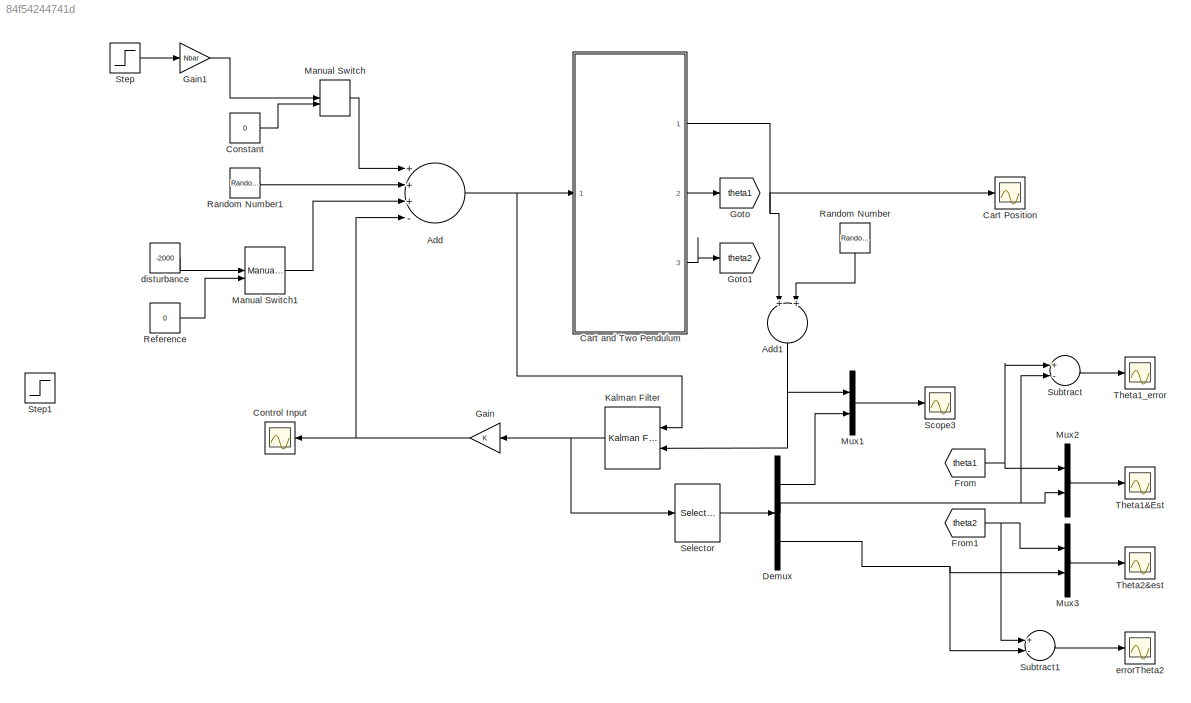
MODEL slx_84f54244741d
KIND model
CONFIG AbsTol = auto
CONFIG FixedStep = auto
CONFIG MaxStep = auto
CONFIG MinStep = auto
CONFIG RelTol = 1e-3
CONFIG SampleTimeConstraint = Unconstrained
CONFIG Solver = VariableStepAuto
CONFIG SolverMode = Auto
CONFIG SolverName = VariableStepAuto
CONFIG StartTime = 0.0
CONFIG StopTime = 50
BLOCK [Sum] Add
  InputSameDT = off
  Inputs = +++-
  OutDataTypeStr = Inherit: Inherit via internal rule
  Ports = [4, 1]
  SaturateOnIntegerOverflow = off
BLOCK [Sum] Add1
  InputSameDT = off
  OutDataTypeStr = Inherit: Inherit via internal rule
  Ports = [2, 1]
  SaturateOnIntegerOverflow = off
BLOCK [Scope] Cart Position
  Ports = [1]
  ScopeSpecificationString = Simulink.scopes.TimeScopeBlockCfg('CurrentConfiguration', extmgr.ConfigurationSet(extmgr.Configuration('Core','General UI',true,'FigureColor',[1 1 1]),extmgr.Configuration('Core','Source UI',true),extmgr.Configuration('Sources','WiredSimulink',true),extmgr.Configuration('Visuals','Time Domain',true,'SerializedDisplays',{struct('MinYLimReal','-2.21929','MaxYLimReal','1.09076','YLabelReal','Cart Pos...<+1548ch>
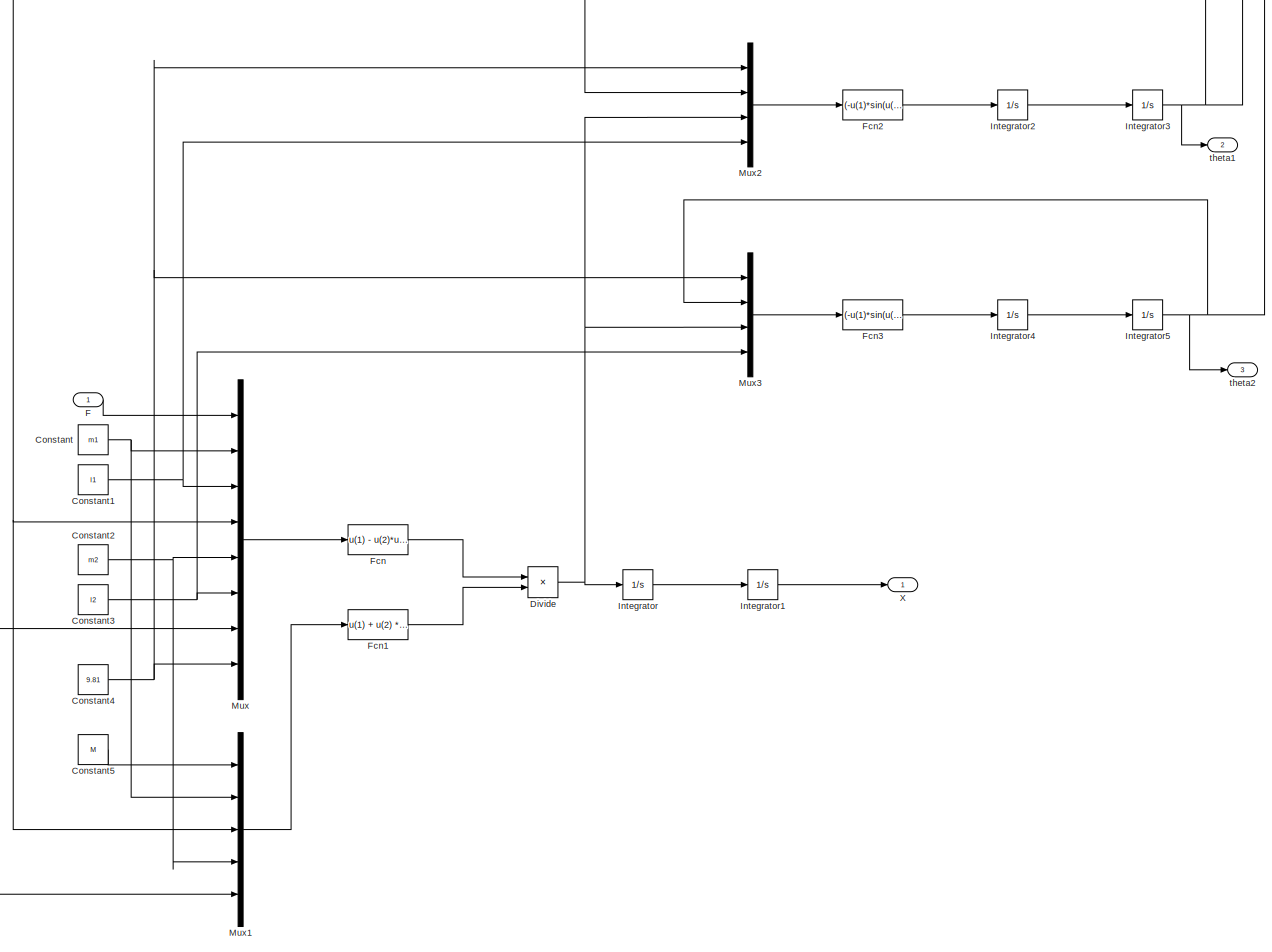
[diagram: Cart and Two Pendulum  - part 1/1, most of the canvas]
BLOCK [SubSystem] Cart and Two Pendulum 
  Ports = [1, 3]
  RequestExecContextInheritance = off
  Variant = off
BLOCK [Constant] Cart and Two Pendulum /Constant
  Value = m1
BLOCK [Constant] Cart and Two Pendulum /Constant1
  Value = l1
BLOCK [Constant] Cart and Two Pendulum /Constant2
  Value = m2
BLOCK [Constant] Cart and Two Pendulum /Constant3
  Value = l2
BLOCK [Constant] Cart and Two Pendulum /Constant4
  Value = 9.81
BLOCK [Constant] Cart and Two Pendulum /Constant5
  Value = M
BLOCK [Product] Cart and Two Pendulum /Divide
  InputSameDT = off
  Inputs = */
  OutDataTypeStr = Inherit: Inherit via internal rule
  Ports = [2, 1]
  RndMeth = Floor
  SaturateOnIntegerOverflow = off
BLOCK [Inport] Cart and Two Pendulum /F
  IconDisplay = Port number
BLOCK [Fcn] Cart and Two Pendulum /Fcn
  Expr = u(1) - u(2)*u(3)*(u(4)^2)*sin(u(4)) - u(5) * u(6) * (u(7)^2)*sin(u(7))-u(2)*u(8)*sin(u(4))*cos(u(4)) - u(5) * u(8) * sin(u(7)) * cos(u(7))
BLOCK [Fcn] Cart and Two Pendulum /Fcn1
  Expr = u(1) + u(2) * (sin(u(3)))^2 + u(4) * (sin(u(5)))^2
BLOCK [Fcn] Cart and Two Pendulum /Fcn2
  Expr = (-u(1)*sin(u(2)) + cos(u(2)) * u(3)) / u(4)
BLOCK [Fcn] Cart and Two Pendulum /Fcn3
  Expr = (-u(1)*sin(u(2)) + cos(u(2)) * u(3)) / u(4)
BLOCK [Integrator] Cart and Two Pendulum /Integrator
  Ports = [1, 1]
BLOCK [Integrator] Cart and Two Pendulum /Integrator1
  InitialCondition = X0(1)
  Ports = [1, 1]
BLOCK [Integrator] Cart and Two Pendulum /Integrator2
  Ports = [1, 1]
BLOCK [Integrator] Cart and Two Pendulum /Integrator3
  InitialCondition = X0(3)
  Ports = [1, 1]
BLOCK [Integrator] Cart and Two Pendulum /Integrator4
  Ports = [1, 1]
BLOCK [Integrator] Cart and Two Pendulum /Integrator5
  InitialCondition = X0(5)
  Ports = [1, 1]
BLOCK [Mux] Cart and Two Pendulum /Mux
  DisplayOption = bar
  Inputs = 8
  Ports = [8, 1]
BLOCK [Mux] Cart and Two Pendulum /Mux1
  DisplayOption = bar
  Inputs = 5
  Ports = [5, 1]
BLOCK [Mux] Cart and Two Pendulum /Mux2
  DisplayOption = bar
  Ports = [4, 1]
BLOCK [Mux] Cart and Two Pendulum /Mux3
  DisplayOption = bar
  Ports = [4, 1]
BLOCK [Outport] Cart and Two Pendulum /X
  IconDisplay = Port number
BLOCK [Outport] Cart and Two Pendulum /theta1
  IconDisplay = Port number
  Port = 2
BLOCK [Outport] Cart and Two Pendulum /theta2
  IconDisplay = Port number
  Port = 3
BLOCK [Constant] Constant
  Value = 0
BLOCK [Scope] Control Input
  Ports = [1]
  ScopeSpecificationString = Simulink.scopes.TimeScopeBlockCfg('CurrentConfiguration', extmgr.ConfigurationSet(extmgr.Configuration('Core','General UI',true),extmgr.Configuration('Core','Source UI',true),extmgr.Configuration('Sources','WiredSimulink',true,'DataLoggingVariableName','ScopeData1'),extmgr.Configuration('Visuals','Time Domain',true,'SerializedDisplays',{struct('MinYLimReal','-27780.46276','MaxYLimReal','83907.0979...<+1393ch>
BLOCK [Demux] Demux
  DisplayOption = bar
  Outputs = 3
  Ports = [1, 3]
BLOCK [From] From
  GotoTag = theta1
BLOCK [From] From1
  GotoTag = theta2
BLOCK [Gain] Gain
  Gain = K
  Multiplication = Matrix(K*u)
  OutDataTypeStr = Inherit: Inherit via internal rule
  ParamDataTypeStr = Inherit: Inherit via internal rule
  SaturateOnIntegerOverflow = off
BLOCK [Gain] Gain1
  Gain = Nbar
  OutDataTypeStr = Inherit: Inherit via internal rule
  ParamDataTypeStr = Inherit: Inherit via internal rule
  SaturateOnIntegerOverflow = off
BLOCK [Goto] Goto
  GotoTag = theta1
BLOCK [Goto] Goto1
  GotoTag = theta2
BLOCK [Reference] Kalman Filter  REF=ctrlSharedLib/Kalman Filter
  Ports = [2, 1]
  SourceBlock = ctrlSharedLib/Kalman Filter
  SourceType = ctrlKalmanFilter
BLOCK [ManualSwitch] Manual Switch
  CurrentSetting = 0
BLOCK [ManualSwitch] Manual Switch1
  CurrentSetting = 0
BLOCK [Mux] Mux1
  DisplayOption = bar
  Inputs = 2
  Ports = [2, 1]
BLOCK [Mux] Mux2
  DisplayOption = bar
  Inputs = 2
  Ports = [2, 1]
BLOCK [Mux] Mux3
  DisplayOption = bar
  Inputs = 2
  Ports = [2, 1]
BLOCK [RandomNumber] Random Number
  SampleTime = 0.1
  Variance = 0.001
BLOCK [RandomNumber] Random Number1
  SampleTime = 0.1
  Variance = 0.2
BLOCK [Constant] Reference
  Value = 0
BLOCK [Scope] Scope3
  Ports = [1]
  ScopeSpecificationString = Simulink.scopes.TimeScopeBlockCfg('CurrentConfiguration', extmgr.ConfigurationSet(extmgr.Configuration('Core','General UI',true),extmgr.Configuration('Core','Source UI',true),extmgr.Configuration('Sources','WiredSimulink',true,'DataLoggingVariableName','ScopeData1'),extmgr.Configuration('Visuals','Time Domain',true,'SerializedDisplays',{struct('MinYLimReal','-4158.89855','MaxYLimReal','2822.64902'...<+1442ch>
BLOCK [Selector] Selector
  IndexOptions = Index vector (dialog)
  Indices = [1 3 5]
  InputPortWidth = 6
  OutputSizes = 1
  Ports = [1, 1]
BLOCK [Step] Step
  After = 10
  SampleTime = 0
BLOCK [Step] Step1
  After = 500
  Commented = on
  SampleTime = 0
BLOCK [Sum] Subtract
  InputSameDT = off
  Inputs = +-
  OutDataTypeStr = Inherit: Inherit via internal rule
  Ports = [2, 1]
  SaturateOnIntegerOverflow = off
BLOCK [Sum] Subtract1
  InputSameDT = off
  Inputs = +-
  OutDataTypeStr = Inherit: Inherit via internal rule
  Ports = [2, 1]
  SaturateOnIntegerOverflow = off
BLOCK [Scope] Theta1&Est
  Ports = [1]
  ScopeSpecificationString = Simulink.scopes.TimeScopeBlockCfg('CurrentConfiguration', extmgr.ConfigurationSet(extmgr.Configuration('Core','General UI',true,'FigureColor',[1 1 1]),extmgr.Configuration('Core','Source UI',true),extmgr.Configuration('Sources','WiredSimulink',true,'DataLoggingVariableName','ScopeData2'),extmgr.Configuration('Visuals','Time Domain',true,'SerializedDisplays',{struct('MinYLimReal','-0.10305','MaxYLi...<+1699ch>
BLOCK [Scope] Theta1_error
  Ports = [1]
  ScopeSpecificationString = Simulink.scopes.TimeScopeBlockCfg('CurrentConfiguration', extmgr.ConfigurationSet(extmgr.Configuration('Core','General UI',true),extmgr.Configuration('Core','Source UI',true),extmgr.Configuration('Sources','WiredSimulink',true,'DataLoggingVariableName','ScopeData4'),extmgr.Configuration('Visuals','Time Domain',true,'SerializedDisplays',{struct('MinYLimReal','-0.00642','MaxYLimReal','0.0065','YLabe...<+1363ch>
BLOCK [Scope] Theta2&est
  Ports = [1]
  ScopeSpecificationString = Simulink.scopes.TimeScopeBlockCfg('CurrentConfiguration', extmgr.ConfigurationSet(extmgr.Configuration('Core','General UI',true,'FigureColor',[1 1 1]),extmgr.Configuration('Core','Source UI',true),extmgr.Configuration('Sources','WiredSimulink',true,'DataLoggingVariableName','ScopeData3'),extmgr.Configuration('Visuals','Time Domain',true,'SerializedDisplays',{struct('MinYLimReal','-0.08285','MaxYLi...<+1674ch>
BLOCK [Constant] disturbance
  Value = -2000
BLOCK [Scope] errorTheta2 
  Ports = [1]
  ScopeSpecificationString = Simulink.scopes.TimeScopeBlockCfg('CurrentConfiguration', extmgr.ConfigurationSet(extmgr.Configuration('Core','General UI',true),extmgr.Configuration('Core','Source UI',true),extmgr.Configuration('Sources','WiredSimulink',true,'DataLoggingVariableName','ScopeData5'),extmgr.Configuration('Visuals','Time Domain',true,'SerializedDisplays',{struct('MinYLimReal','-0.01264','MaxYLimReal','0.01243','YLab...<+1368ch>
NET Add1:1 -> Kalman Filter:2, Mux1:1
NET Add:1 -> Cart and Two Pendulum :1, Kalman Filter:1
NET Cart and Two Pendulum /Constant1:1 -> Cart and Two Pendulum /Mux2:4, Cart and Two Pendulum /Mux:3
NET Cart and Two Pendulum /Constant2:1 -> Cart and Two Pendulum /Mux1:4, Cart and Two Pendulum /Mux:5
NET Cart and Two Pendulum /Constant3:1 -> Cart and Two Pendulum /Mux3:4, Cart and Two Pendulum /Mux:6
NET Cart and Two Pendulum /Constant4:1 -> Cart and Two Pendulum /Mux2:1, Cart and Two Pendulum /Mux3:1, Cart and Two Pendulum /Mux:8
LINE Cart and Two Pendulum /Constant5:1 -> Cart and Two Pendulum /Mux1:1
NET Cart and Two Pendulum /Constant:1 -> Cart and Two Pendulum /Mux1:2, Cart and Two Pendulum /Mux:2
NET Cart and Two Pendulum /Divide:1 -> Cart and Two Pendulum /Integrator:1, Cart and Two Pendulum /Mux2:3, Cart and Two Pendulum /Mux3:3
LINE Cart and Two Pendulum /F:1 -> Cart and Two Pendulum /Mux:1
LINE Cart and Two Pendulum /Fcn1:1 -> Cart and Two Pendulum /Divide:2
LINE Cart and Two Pendulum /Fcn2:1 -> Cart and Two Pendulum /Integrator2:1
LINE Cart and Two Pendulum /Fcn3:1 -> Cart and Two Pendulum /Integrator4:1
LINE Cart and Two Pendulum /Fcn:1 -> Cart and Two Pendulum /Divide:1
LINE Cart and Two Pendulum /Integrator1:1 -> Cart and Two Pendulum /X:1
LINE Cart and Two Pendulum /Integrator2:1 -> Cart and Two Pendulum /Integrator3:1
NET Cart and Two Pendulum /Integrator3:1 -> Cart and Two Pendulum /Mux1:3, Cart and Two Pendulum /Mux2:2, Cart and Two Pendulum /Mux:4, Cart and Two Pendulum /theta1:1
LINE Cart and Two Pendulum /Integrator4:1 -> Cart and Two Pendulum /Integrator5:1
NET Cart and Two Pendulum /Integrator5:1 -> Cart and Two Pendulum /Mux1:5, Cart and Two Pendulum /Mux3:2, Cart and Two Pendulum /Mux:7, Cart and Two Pendulum /theta2:1
LINE Cart and Two Pendulum /Integrator:1 -> Cart and Two Pendulum /Integrator1:1
LINE Cart and Two Pendulum /Mux1:1 -> Cart and Two Pendulum /Fcn1:1
LINE Cart and Two Pendulum /Mux2:1 -> Cart and Two Pendulum /Fcn2:1
LINE Cart and Two Pendulum /Mux3:1 -> Cart and Two Pendulum /Fcn3:1
LINE Cart and Two Pendulum /Mux:1 -> Cart and Two Pendulum /Fcn:1
NET Cart and Two Pendulum :1 -> Add1:1, Cart Position:1
LINE Cart and Two Pendulum :2 -> Goto:1
LINE Cart and Two Pendulum :3 -> Goto1:1
LINE Constant:1 -> Manual Switch:2
LINE Demux:1 -> Mux1:2
NET Demux:2 -> Mux2:2, Subtract:2
NET Demux:3 -> Mux3:2, Subtract1:2
NET From1:1 -> Mux3:1, Subtract1:1
NET From:1 -> Mux2:1, Subtract:1
LINE Gain1:1 -> Manual Switch:1
NET Gain:1 -> Add:4, Control Input:1
NET Kalman Filter:1 -> Gain:1, Selector:1
LINE Manual Switch1:1 -> Add:3
LINE Manual Switch:1 -> Add:1
LINE Mux1:1 -> Scope3:1
LINE Mux2:1 -> Theta1&Est:1
LINE Mux3:1 -> Theta2&est:1
LINE Random Number1:1 -> Add:2
LINE Random Number:1 -> Add1:2
LINE Reference:1 -> Manual Switch1:2
LINE Selector:1 -> Demux:1
LINE Step:1 -> Gain1:1
LINE Subtract1:1 -> errorTheta2 :1
LINE Subtract:1 -> Theta1_error:1
LINE disturbance:1 -> Manual Switch1:1
note: NET lines group one-source signal fan-out (src -> all destinations, sorted); 1:1 wires keep LINE
